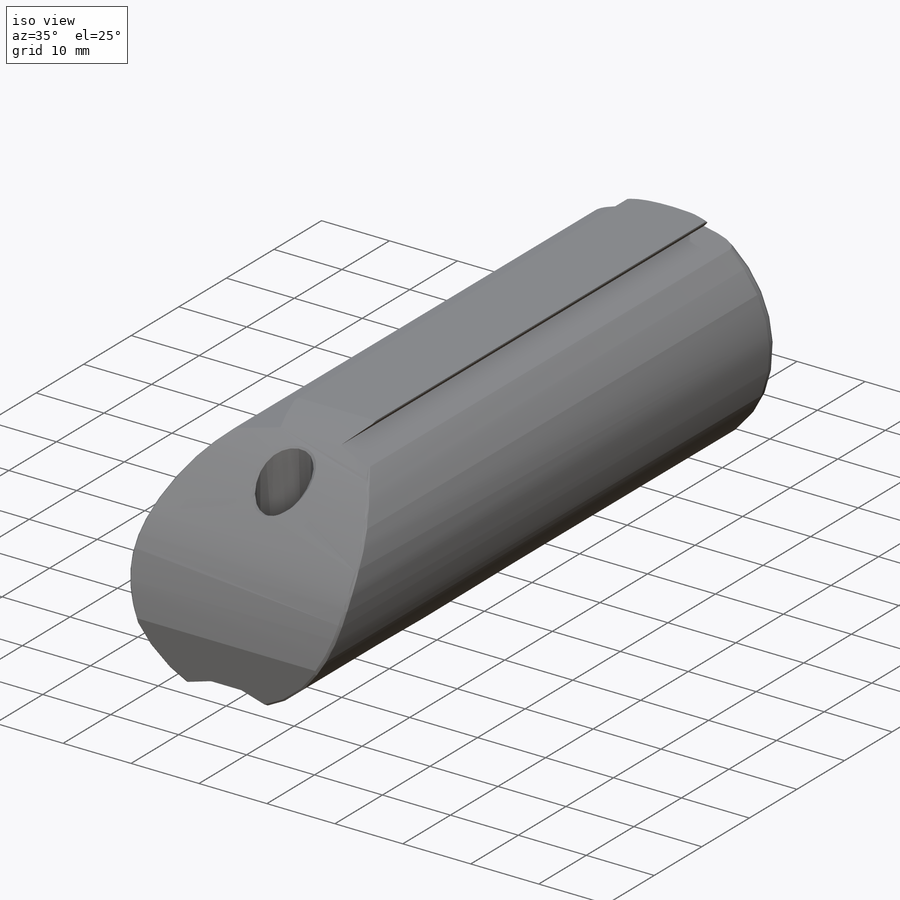
[diagram: iso view]
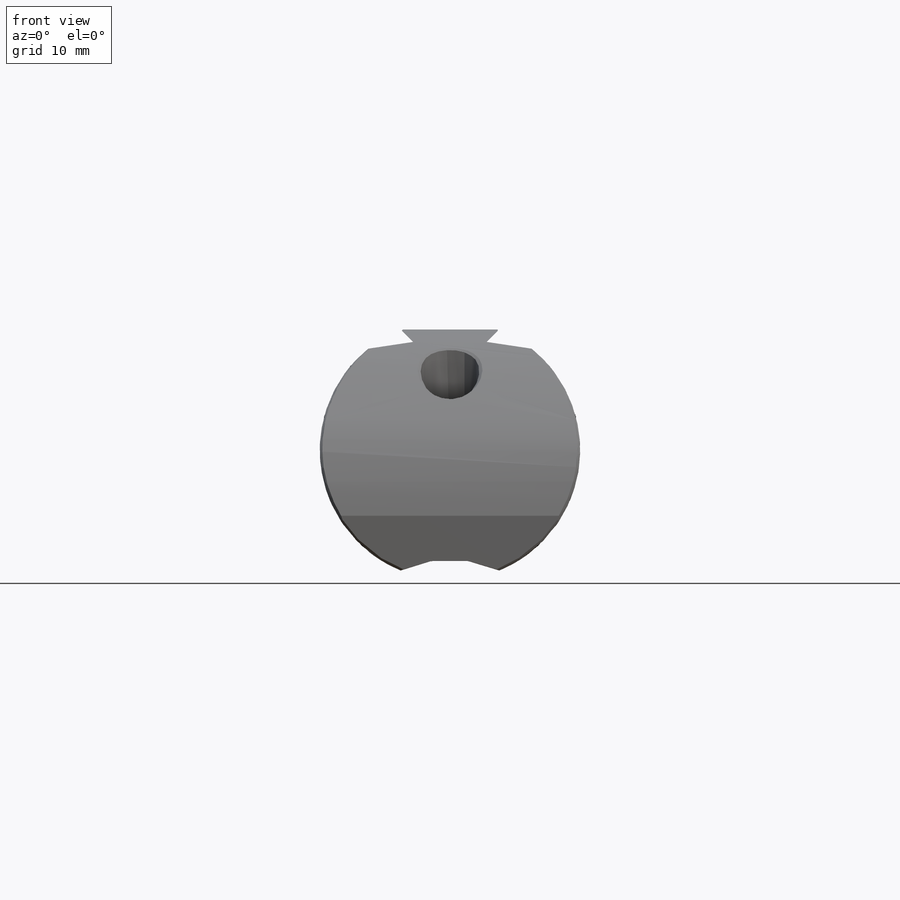
[diagram: front view]
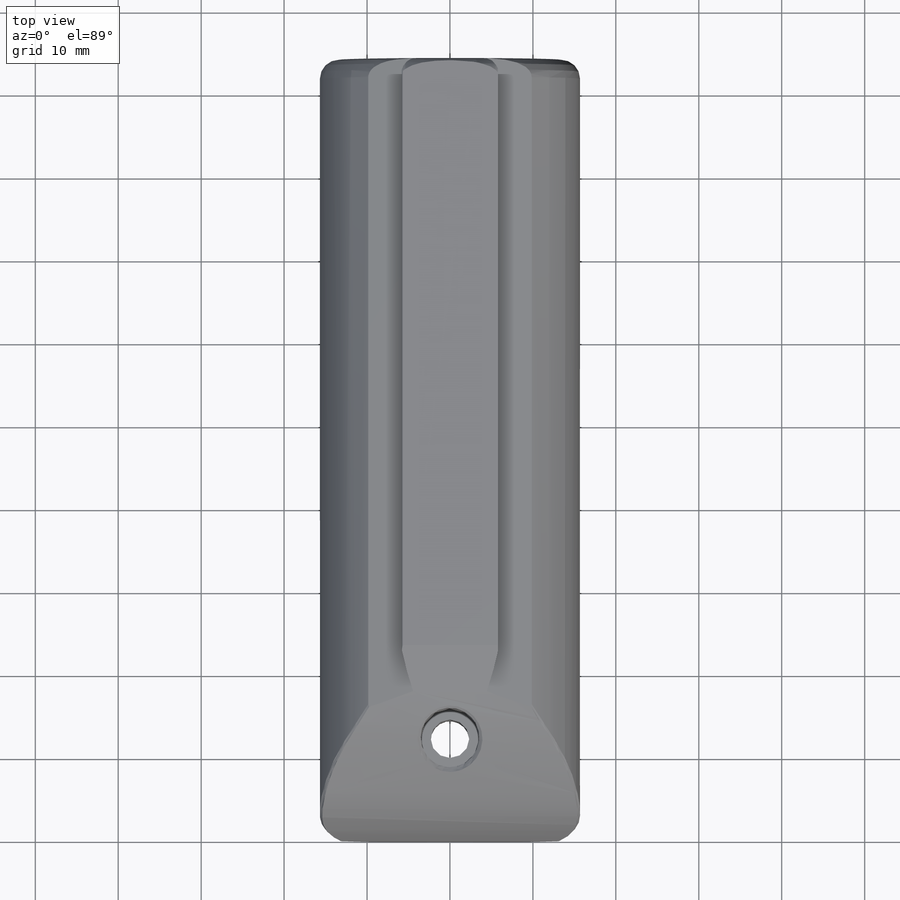
[diagram: top view]
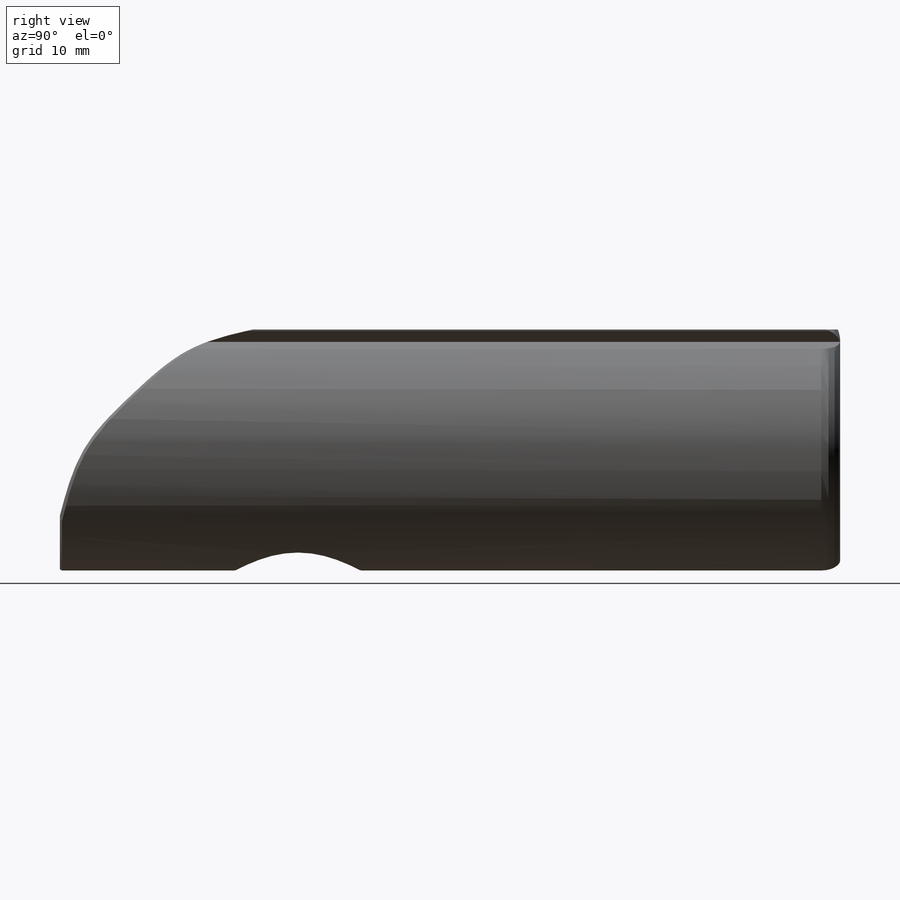
[diagram: right view]
SOLIDWORKS PART (.sldprt)
format: sldprt  version: not decoded by parser v0  size: 562,688 bytes
history: native  units: mm
features: sketch x10, cut_extrude x6, plane x2, chamfer x2, material x1, extrude x1, fillet x1, cut_revolve x1, hole x1 (+13 scaffold rows collapsed)
feature tree (38):
  scaffold x13  (default folders/planes/origin — collapsed)
  material  "PTFE (general)"
  sketch  "Sketch1"  dims[D1=~25.681766mm]
  extrude  "Extrude1"  Depth=94.0816mm
  fillet  "Fillet1"  Radius=2.286mm
  sketch  "Sketch3"  dims[D1=12.7mm]
  cut_extrude  "Cut-Extrude1"  [1 undecoded]
  sketch  "Sketch4"  dims[D1=~10.484293mm]
  cut_extrude  "Cut-Extrude2"  Depth=34.29mm
  sketch  "Sketch14"
  cut_extrude  "Cut-Extrude3"  Depth=31.0896mm
  sketch  "Sketch15"
  cut_revolve  "Cut-Revolve2"  Angle=360deg
  plane  "Plane1"  Offset=14.605mm
  sketch  "Sketch16"  dims[D1=28.702mm]
  cut_extrude  "Cut-Extrude4"  Depth=14.605mm
  sketch  "Sketch18"  dims[c1.D1=27.559mm c2.D1=315.0deg]
  cut_extrude  "Cut-Extrude7"  [1 undecoded]
  plane  "Plane3"  Offset=14.605mm
  hole  "CBORE for 1/4 Socket Shoulder Screw1"  Diameter=4.6482mm Depth=29.350655mm
  sketch  "Sketch25"
  sketch  "Sketch24"  dims[hole-wizard template sketch: 41 standard entries collapsed; hole parameters kept: c12.Thru Hole Dia.=4.6482mm c12.Thru Hole Depth=~29.350655mm c12.C'Bore Dia.=7.0612mm c12.C'Bore Depth=14.478mm]
  sketch  "Sketch21"  dims[D1=70.8152mm]
  cut_extrude  "Cut-Extrude8"  Depth=50.8mm
  chamfer  "Chamfer1"  Distance=0.254mm Angle=45deg
  chamfer  "Chamfer2"  Distance=0.127mm Angle=45deg
decode coverage: 17 of 22 modeling features carry decoded parameters
note: ~ marks probable driven/reference dimensions
note: 2 parameter values undecoded
note: suppression state not decoded; provenance and decode notes live in map.json
